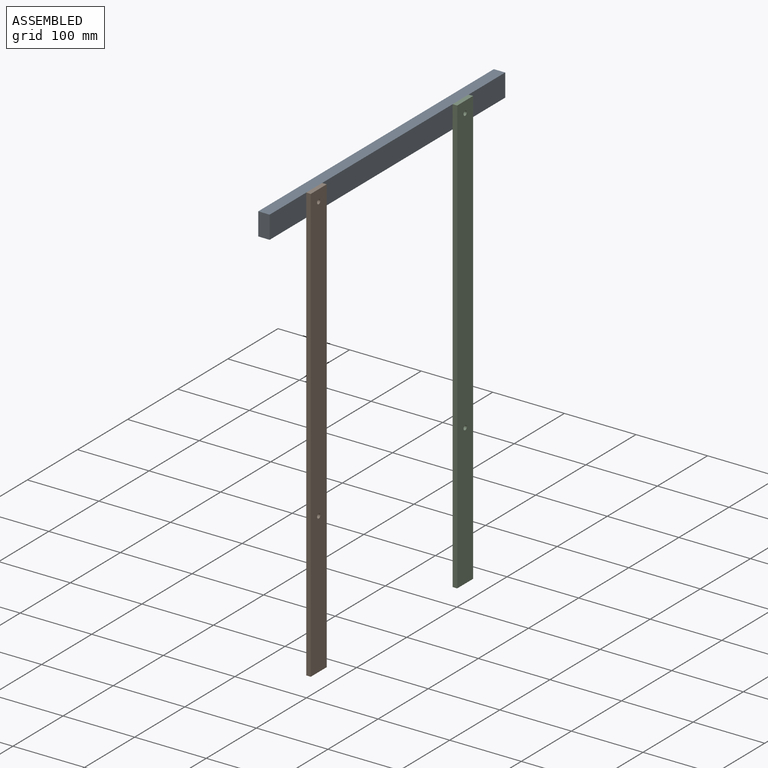
[diagram: assembled view]
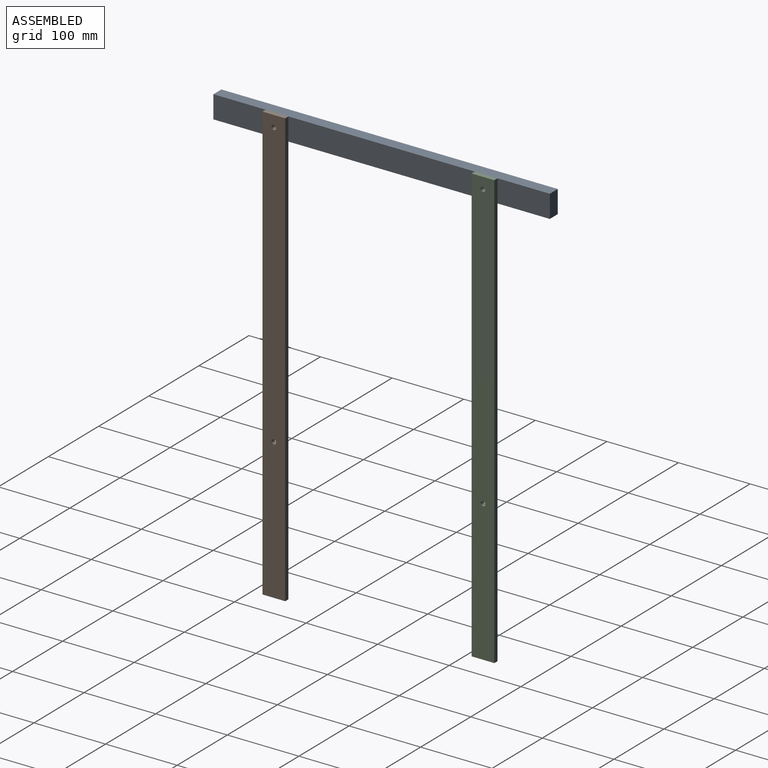
[diagram: assembled view, second angle]
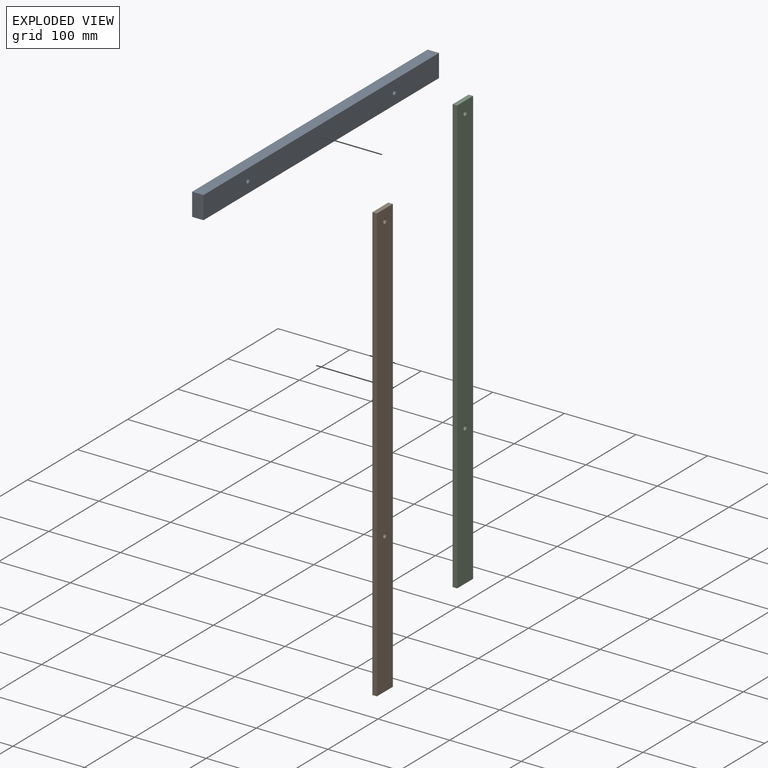
[diagram: exploded view]
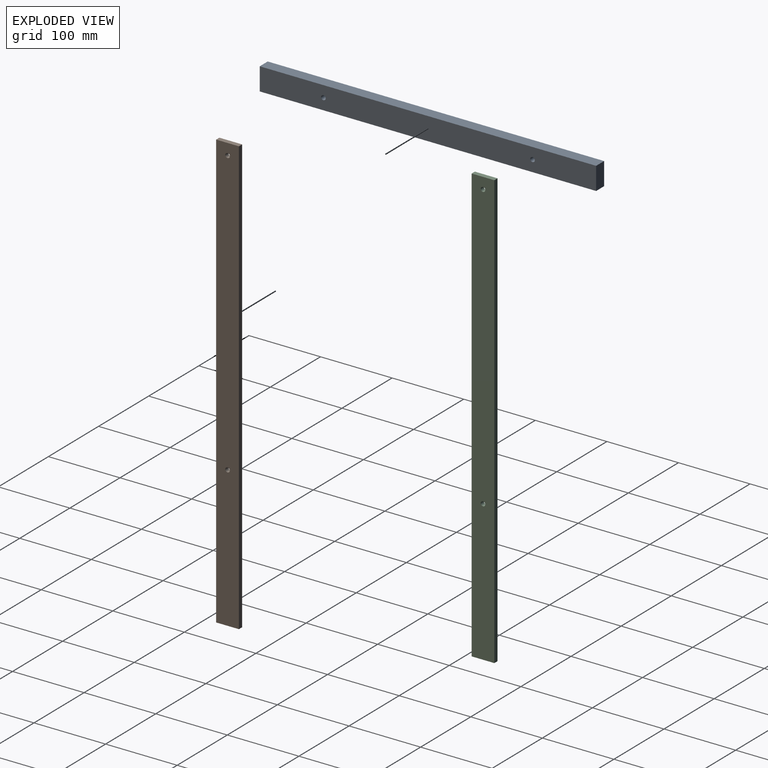
[diagram: exploded view, second angle]
ASSEMBLY  parts=3 mates=6
PART A: 8 faces, bbox 15.9x469.9x31.8 mm
  f0: plane 469.9x31.75mm, normal (-1,0,0), area 14856mm2, adj f1,f3,f4,f5,f6,f7
  f1: plane 469.9x15.88mm, normal (0,0,-1), area 7459.7mm2, adj f0,f2,f4,f5
  f2: plane 469.9x31.75mm, normal (1,0,0), area 14856mm2, adj f1,f3,f4,f5,f6,f7
  f3: plane 469.9x15.88mm, normal (0,0,1), area 7459.7mm2, adj f0,f2,f4,f5
  f4: plane 31.75x15.88mm, normal (0,1,0), area 504mm2, adj f0,f1,f2,f3
  f5: plane 31.75x15.88mm, normal (0,-1,0), area 504mm2, adj f0,f1,f2,f3
  f6: cylinder r=3.17mm len=15.88mm, axis (1,0,0), area 316.7mm2, adj f0,f2
  f7: cylinder r=3.17mm len=15.88mm, axis (1,0,0), area 316.7mm2, adj f0,f2
PART B: 8 faces, bbox 6.4x31.8x609.6 mm
  f0: plane 609.6x31.75mm, normal (-1,0,0), area 19291.5mm2, adj f1,f3,f4,f5,f6,f7
  f1: plane 609.6x6.35mm, normal (0,-1,0), area 3871mm2, adj f0,f2,f4,f5
  f2: plane 609.6x31.75mm, normal (1,0,0), area 19291.5mm2, adj f1,f3,f4,f5,f6,f7
  f3: plane 609.6x6.35mm, normal (0,1,0), area 3871mm2, adj f0,f2,f4,f5
  f4: plane 31.75x6.35mm, normal (0,0,-1), area 201.6mm2, adj f0,f1,f2,f3
  f5: plane 31.75x6.35mm, normal (0,0,1), area 201.6mm2, adj f0,f1,f2,f3
  f6: cylinder r=3.17mm len=6.35mm, axis (1,0,0), area 126.7mm2, adj f0,f2
  f7: cylinder r=3.17mm len=6.35mm, axis (1,0,0), area 126.7mm2, adj f0,f2
PART C: same geometry as B
PLACE A t=(-636.59,456.08,-717.56)mm
PLACE B t=(-620.72,529.11,-685.81)mm
PLACE C t=(-620.72,821.21,-685.81)mm
MATE cylindrical A.f6 <-> B.f6  axis (1,0,0) through (-620.72,544.98,-701.68)mm
MATE planar A.f2 <-> B.f0  axis (1,0,0) through (-620.72,691.03,-701.68)mm
MATE planar A.f2 <-> C.f0  axis (1,0,0) through (-620.72,691.03,-701.68)mm
MATE planar A.f3 <-> C.f5  axis (0,0,1) through (-628.65,691.03,-685.81)mm
MATE cylindrical A.f7 <-> C.f6  axis (1,0,0) through (-620.72,837.08,-701.68)mm
MATE planar A.f3 <-> B.f5  axis (0,0,1) through (-628.65,691.03,-685.81)mm
